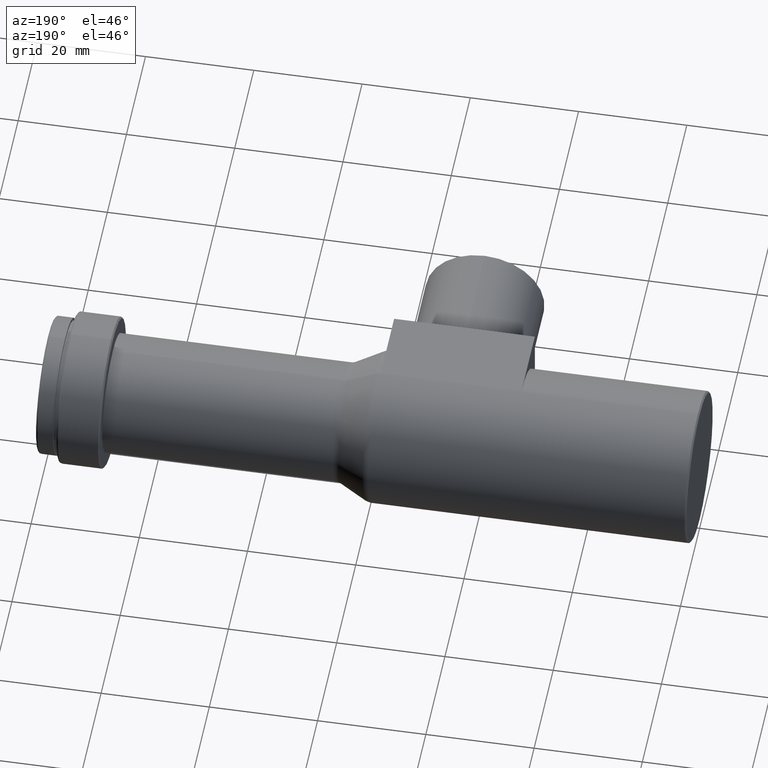
[diagram: clean part render]
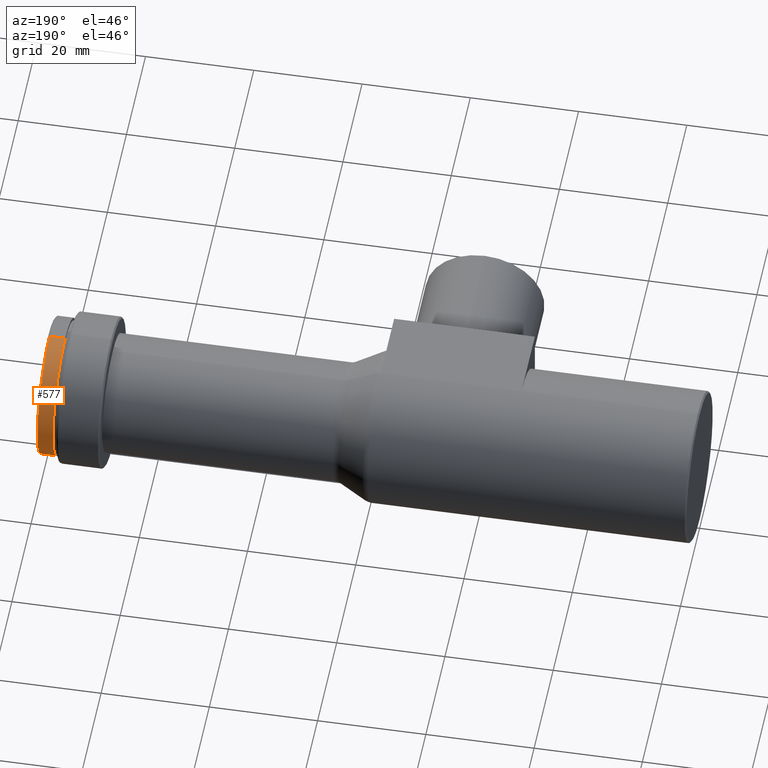
[diagram: same view with one face highlighted and labeled with its STEP entity id]
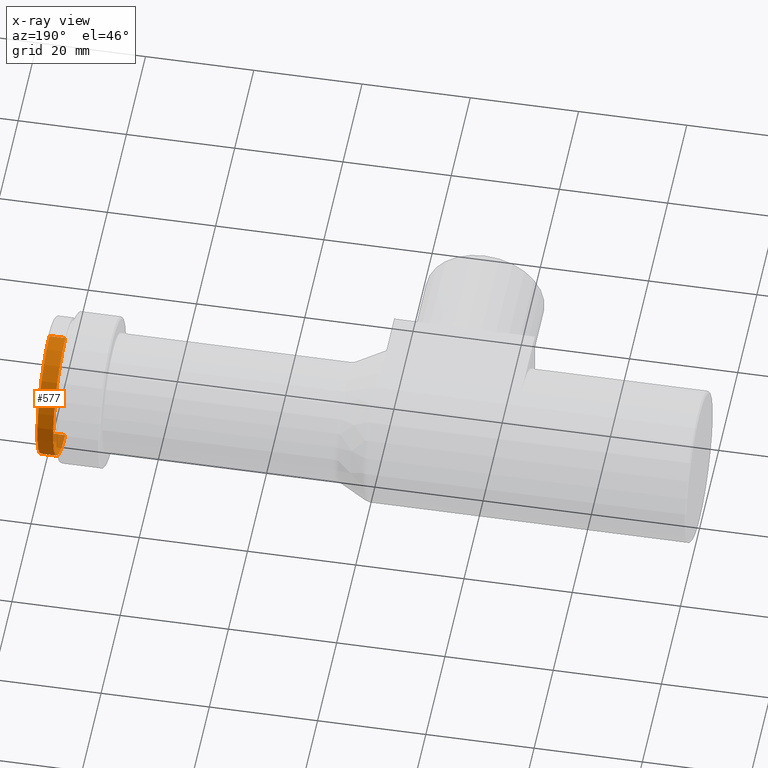
[diagram: x-ray of the same camera — body ghosted, the highlighted face saturated]
A machine part, auxiliary view. The second image highlights one B-rep face of the part: STEP entity #577.
The next image is the same camera in x-ray: the body ghosted, the highlighted face saturated — about 6% of this face is hidden behind the body in this view.
In plain terms, the highlighted cylindrical surface (partial cylindrical patch) has radius 12.7 mm, axis along (-1, -0, -0).
Its self-contained STEP definition (entity closure, byte-faithful):
#4 = VECTOR ( 'NONE', #928, 1000.000000000000000 ) ;
#81 = VERTEX_POINT ( 'NONE', #848 ) ;
#107 = ORIENTED_EDGE ( 'NONE', *, *, #1102, .F. ) ;
#130 = VERTEX_POINT ( 'NONE', #349 ) ;
#158 = FACE_OUTER_BOUND ( 'NONE', #302, .T. ) ;
#171 = CIRCLE ( 'NONE', #329, 12.70000000000000300 ) ;
#197 = EDGE_CURVE ( 'NONE', #81, #130, #999, .T. ) ;
#201 = DIRECTION ( 'NONE',  ( 0.0000000000000000000, 0.0000000000000000000, 1.000000000000000000 ) ) ;
#204 = VECTOR ( 'NONE', #543, 1000.000000000000000 ) ;
#210 = EDGE_CURVE ( 'NONE', #642, #847, #171, .T. ) ;
#249 = CARTESIAN_POINT ( 'NONE',  ( 0.0000000000000000000, 1.555301434917138800E-015, -12.70000000000000300 ) ) ;
#262 = CYLINDRICAL_SURFACE ( 'NONE', #1082, 12.70000000000000300 ) ;
#283 = DIRECTION ( 'NONE',  ( 0.0000000000000000000, 0.0000000000000000000, 1.000000000000000000 ) ) ;
#286 = LINE ( 'NONE', #249, #4 ) ;
#302 = EDGE_LOOP ( 'NONE', ( #438, #764, #845, #107 ) ) ;
#329 = AXIS2_PLACEMENT_3D ( 'NONE', #720, #707, #201 ) ;
#349 = CARTESIAN_POINT ( 'NONE',  ( 117.2000000000000000, 1.555301434917138800E-015, -12.70000000000000300 ) ) ;
#438 = ORIENTED_EDGE ( 'NONE', *, *, #210, .T. ) ;
#457 = CARTESIAN_POINT ( 'NONE',  ( 0.0000000000000000000, 0.0000000000000000000, 12.70000000000000300 ) ) ;
#459 = CARTESIAN_POINT ( 'NONE',  ( 117.2000000000000000, 0.0000000000000000000, 0.0000000000000000000 ) ) ;
#505 = CARTESIAN_POINT ( 'NONE',  ( 0.0000000000000000000, 0.0000000000000000000, 0.0000000000000000000 ) ) ;
#542 = DIRECTION ( 'NONE',  ( -1.000000000000000000, -0.0000000000000000000, -0.0000000000000000000 ) ) ;
#543 = DIRECTION ( 'NONE',  ( -1.000000000000000000, -0.0000000000000000000, -0.0000000000000000000 ) ) ;
#577 = ADVANCED_FACE ( 'NONE', ( #158 ), #262, .T. ) ;
#586 = EDGE_CURVE ( 'NONE', #847, #130, #286, .T. ) ;
#642 = VERTEX_POINT ( 'NONE', #767 ) ;
#691 = AXIS2_PLACEMENT_3D ( 'NONE', #459, #542, #283 ) ;
#707 = DIRECTION ( 'NONE',  ( -1.000000000000000000, -0.0000000000000000000, -0.0000000000000000000 ) ) ;
#720 = CARTESIAN_POINT ( 'NONE',  ( 120.1000000000000100, 0.0000000000000000000, 0.0000000000000000000 ) ) ;
#764 = ORIENTED_EDGE ( 'NONE', *, *, #586, .T. ) ;
#767 = CARTESIAN_POINT ( 'NONE',  ( 120.1000000000000100, 0.0000000000000000000, 12.70000000000000300 ) ) ;
#797 = LINE ( 'NONE', #457, #204 ) ;
#820 = CARTESIAN_POINT ( 'NONE',  ( 120.1000000000000100, 1.555301434917138800E-015, -12.70000000000000300 ) ) ;
#845 = ORIENTED_EDGE ( 'NONE', *, *, #197, .F. ) ;
#847 = VERTEX_POINT ( 'NONE', #820 ) ;
#848 = CARTESIAN_POINT ( 'NONE',  ( 117.2000000000000000, 0.0000000000000000000, 12.70000000000000300 ) ) ;
#928 = DIRECTION ( 'NONE',  ( -1.000000000000000000, -0.0000000000000000000, -0.0000000000000000000 ) ) ;
#999 = CIRCLE ( 'NONE', #691, 12.70000000000000300 ) ;
#1013 = DIRECTION ( 'NONE',  ( -1.000000000000000000, -0.0000000000000000000, -0.0000000000000000000 ) ) ;
#1082 = AXIS2_PLACEMENT_3D ( 'NONE', #505, #1013, #1106 ) ;
#1102 = EDGE_CURVE ( 'NONE', #642, #81, #797, .T. ) ;
#1106 = DIRECTION ( 'NONE',  ( 0.0000000000000000000, 0.0000000000000000000, 1.000000000000000000 ) ) ;